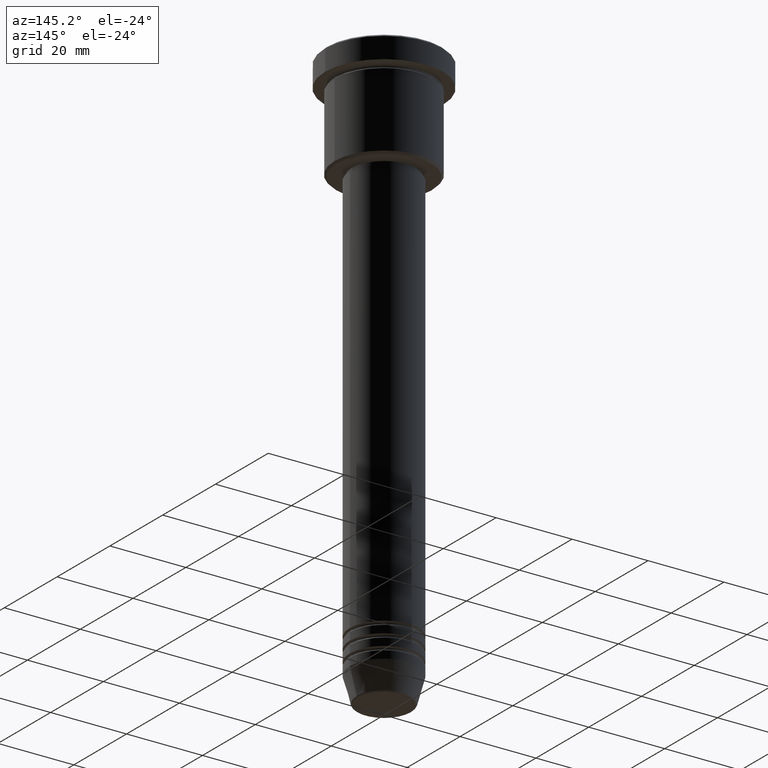
[diagram: clean part render]
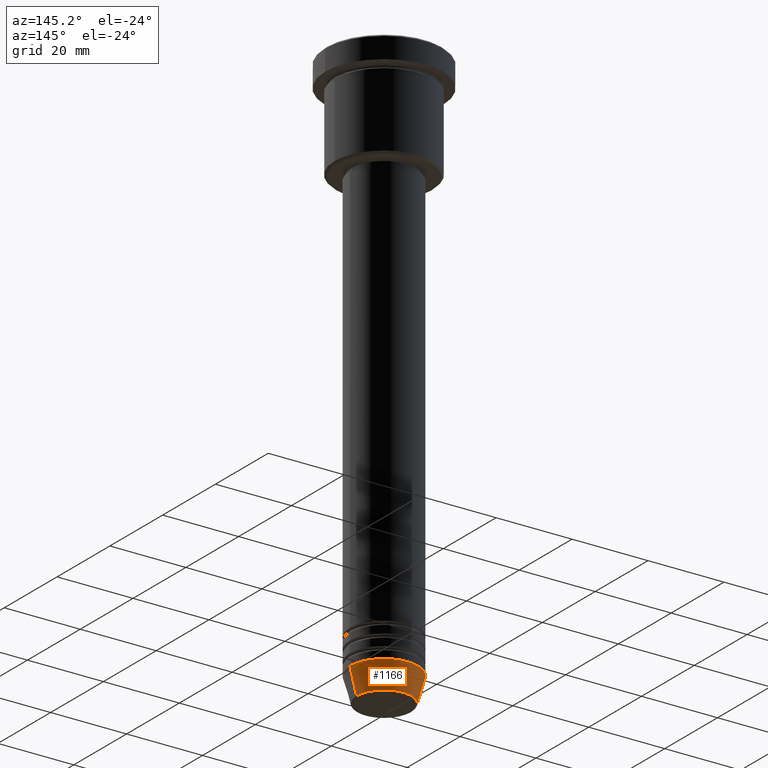
[diagram: same view with one face highlighted and labeled with its STEP entity id]
A machine part, auxiliary view. The second image highlights one B-rep face of the part: STEP entity #1166.
In plain terms, the highlighted conical surface has half-angle 15 deg.
Its self-contained STEP definition (entity closure, byte-faithful):
#42 = DIRECTION ( 'NONE',  ( 1.000000000000000000, 0.000000000000000000, 0.000000000000000000 ) ) ;
#73 = VERTEX_POINT ( 'NONE', #1082 ) ;
#77 = LINE ( 'NONE', #726, #997 ) ;
#127 = DIRECTION ( 'NONE',  ( -0.000000000000000000, -0.000000000000000000, 1.000000000000000000 ) ) ;
#163 = DIRECTION ( 'NONE',  ( -0.2588190451025213501, 3.169619151431772337E-17, 0.9659258262890680902 ) ) ;
#167 = EDGE_CURVE ( 'NONE', #619, #589, #77, .T. ) ;
#276 = CARTESIAN_POINT ( 'NONE',  ( 0.000000000000000000, 0.000000000000000000, -151.6294095225512422 ) ) ;
#281 = CARTESIAN_POINT ( 'NONE',  ( 9.000000000000000000, 0.000000000000000000, -145.0000000000000000 ) ) ;
#299 = FACE_OUTER_BOUND ( 'NONE', #641, .T. ) ;
#327 = CIRCLE ( 'NONE', #905, 9.000000000000000000 ) ;
#390 = CIRCLE ( 'NONE', #1097, 7.223655072137196598 ) ;
#407 = CARTESIAN_POINT ( 'NONE',  ( 0.000000000000000000, 0.000000000000000000, -145.0000000000000000 ) ) ;
#410 = ORIENTED_EDGE ( 'NONE', *, *, #1144, .F. ) ;
#443 = VECTOR ( 'NONE', #808, 1000.000000000000000 ) ;
#589 = VERTEX_POINT ( 'NONE', #836 ) ;
#619 = VERTEX_POINT ( 'NONE', #833 ) ;
#641 = EDGE_LOOP ( 'NONE', ( #801, #1103, #410, #910 ) ) ;
#649 = DIRECTION ( 'NONE',  ( -0.000000000000000000, -0.000000000000000000, 1.000000000000000000 ) ) ;
#667 = DIRECTION ( 'NONE',  ( 1.000000000000000000, 0.000000000000000000, 0.000000000000000000 ) ) ;
#698 = CONICAL_SURFACE ( 'NONE', #1045, 9.000000000000000000, 0.2617993877991500740 ) ;
#726 = CARTESIAN_POINT ( 'NONE',  ( -9.000000000000000000, 1.102182119232617714E-15, -145.0000000000000000 ) ) ;
#749 = DIRECTION ( 'NONE',  ( -0.000000000000000000, -0.000000000000000000, 1.000000000000000000 ) ) ;
#763 = CARTESIAN_POINT ( 'NONE',  ( 0.000000000000000000, 0.000000000000000000, -145.0000000000000000 ) ) ;
#801 = ORIENTED_EDGE ( 'NONE', *, *, #1051, .T. ) ;
#808 = DIRECTION ( 'NONE',  ( 0.2588190451025213501, 0.000000000000000000, 0.9659258262890680902 ) ) ;
#833 = CARTESIAN_POINT ( 'NONE',  ( -7.223655072137197486, 9.934123627281769054E-16, -151.6294095225512422 ) ) ;
#836 = CARTESIAN_POINT ( 'NONE',  ( -9.000000000000000000, 1.102182119232617714E-15, -145.0000000000000000 ) ) ;
#905 = AXIS2_PLACEMENT_3D ( 'NONE', #763, #749, #42 ) ;
#910 = ORIENTED_EDGE ( 'NONE', *, *, #993, .F. ) ;
#914 = LINE ( 'NONE', #994, #443 ) ;
#993 = EDGE_CURVE ( 'NONE', #73, #1049, #914, .T. ) ;
#994 = CARTESIAN_POINT ( 'NONE',  ( 9.000000000000000000, 0.000000000000000000, -145.0000000000000000 ) ) ;
#997 = VECTOR ( 'NONE', #163, 1000.000000000000000 ) ;
#1005 = DIRECTION ( 'NONE',  ( 1.000000000000000000, 0.000000000000000000, 0.000000000000000000 ) ) ;
#1045 = AXIS2_PLACEMENT_3D ( 'NONE', #407, #127, #667 ) ;
#1049 = VERTEX_POINT ( 'NONE', #281 ) ;
#1051 = EDGE_CURVE ( 'NONE', #73, #619, #390, .T. ) ;
#1082 = CARTESIAN_POINT ( 'NONE',  ( 7.223655072137196598, 0.000000000000000000, -151.6294095225512422 ) ) ;
#1097 = AXIS2_PLACEMENT_3D ( 'NONE', #276, #649, #1005 ) ;
#1103 = ORIENTED_EDGE ( 'NONE', *, *, #167, .T. ) ;
#1144 = EDGE_CURVE ( 'NONE', #1049, #589, #327, .T. ) ;
#1166 = ADVANCED_FACE ( 'NONE', ( #299 ), #698, .T. ) ;